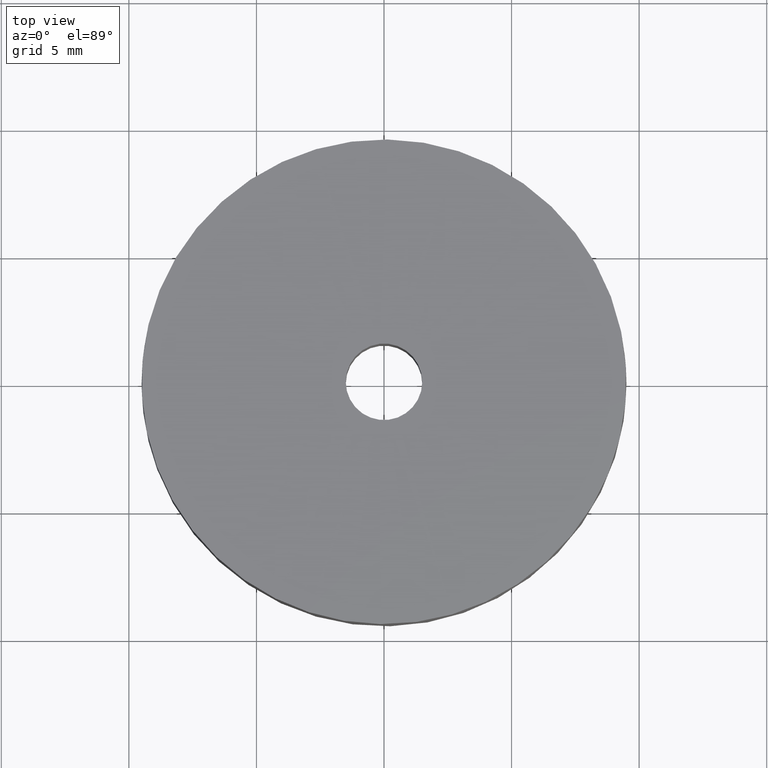
[diagram: clean part render]
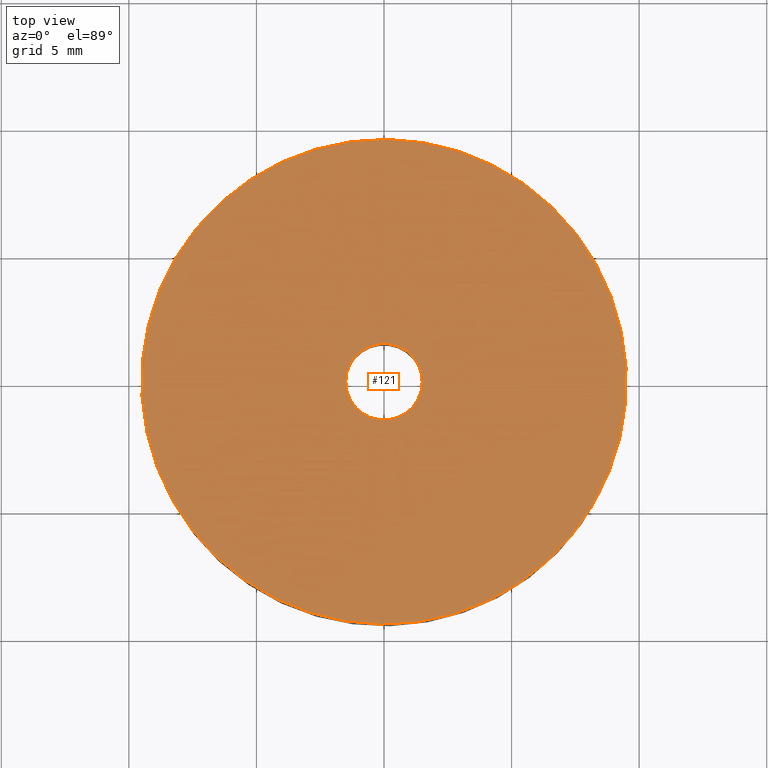
[diagram: same view with one face highlighted and labeled with its STEP entity id]
A machine part, top view. The second image highlights one B-rep face of the part: STEP entity #121.
In plain terms, the highlighted planar face has unit normal (0, 0, -1).
Its self-contained STEP definition (entity closure, byte-faithful):
#121=ADVANCED_FACE('',(#228,#229),#227,.F.);
#227=PLANE('',#391);
#228=FACE_OUTER_BOUND('',#392,.T.);
#229=FACE_BOUND('',#393,.T.);
#388=CARTESIAN_POINT('',(1.79275391950E+001,-1.51417448702E+001,1.00000000000E+001));
#389=DIRECTION('',(0.00000000000E+000,0.00000000000E+000,-1.00000000000E+000));
#390=DIRECTION('',(-1.00000000000E+000,0.00000000000E+000,0.00000000000E+000));
#391=AXIS2_PLACEMENT_3D('',#388,#389,#390);
#392=EDGE_LOOP('',(#522,#523));
#393=EDGE_LOOP('',(#524,#525));
#522=ORIENTED_EDGE('',*,*,#594,.F.);
#523=ORIENTED_EDGE('',*,*,#595,.F.);
#524=ORIENTED_EDGE('',*,*,#596,.T.);
#525=ORIENTED_EDGE('',*,*,#597,.T.);
#594=EDGE_CURVE('',#776,#777,#778,.T.);
#595=EDGE_CURVE('',#777,#776,#784,.T.);
#596=EDGE_CURVE('',#790,#791,#792,.T.);
#597=EDGE_CURVE('',#791,#790,#798,.T.);
#776=VERTEX_POINT('',#1000);
#777=VERTEX_POINT('',#1001);
#778=CIRCLE('',#1005,9.49999999998E+000);
#784=CIRCLE('',#1009,9.49999999998E+000);
#790=VERTEX_POINT('',#1010);
#791=VERTEX_POINT('',#1011);
#792=CIRCLE('',#1015,1.50000000000E+000);
#798=CIRCLE('',#1019,1.50000000000E+000);
#1000=CARTESIAN_POINT('',(-8.89285889131E+000,-3.34171523901E+000,1.00000000000E+001));
#1001=CARTESIAN_POINT('',(8.89285889134E+000,3.34171523901E+000,1.00000000000E+001));
#1002=CARTESIAN_POINT('',(1.60280677619E-011,1.53210777398E-014,1.00000000000E+001));
#1003=DIRECTION('',(-5.28550467765E-015,-1.34967921650E-015,-1.00000000000E+000));
#1004=DIRECTION('',(9.36090409615E-001,3.51759498844E-001,-5.42247272352E-015));
#1005=AXIS2_PLACEMENT_3D('',#1002,#1003,#1004);
#1006=CARTESIAN_POINT('',(1.60280677619E-011,1.53210777398E-014,1.00000000000E+001));
#1007=DIRECTION('',(-5.28550467765E-015,-1.34967921650E-015,-1.00000000000E+000));
#1008=DIRECTION('',(9.36090409615E-001,3.51759498844E-001,-5.42247272352E-015));
#1009=AXIS2_PLACEMENT_3D('',#1006,#1007,#1008);
#1010=CARTESIAN_POINT('',(1.77050807278E-001,-1.48951435429E+000,1.00000000000E+001));
#1011=CARTESIAN_POINT('',(-1.77051351985E-001,1.48951428955E+000,1.00000000000E+001));
#1012=CARTESIAN_POINT('',(4.44089209850E-016,3.33066907388E-016,1.00000000000E+001));
#1013=DIRECTION('',(2.01320441799E-014,2.42157558079E-015,-1.00000000000E+000));
#1014=DIRECTION('',(1.18033871519E-001,-9.93009569528E-001,-2.83846089218E-017));
#1015=AXIS2_PLACEMENT_3D('',#1012,#1013,#1014);
#1016=CARTESIAN_POINT('',(4.44089209850E-016,3.33066907388E-016,1.00000000000E+001));
#1017=DIRECTION('',(2.01320441799E-014,2.42157558079E-015,-1.00000000000E+000));
#1018=DIRECTION('',(1.18033871519E-001,-9.93009569528E-001,-2.83846089218E-017));
#1019=AXIS2_PLACEMENT_3D('',#1016,#1017,#1018);